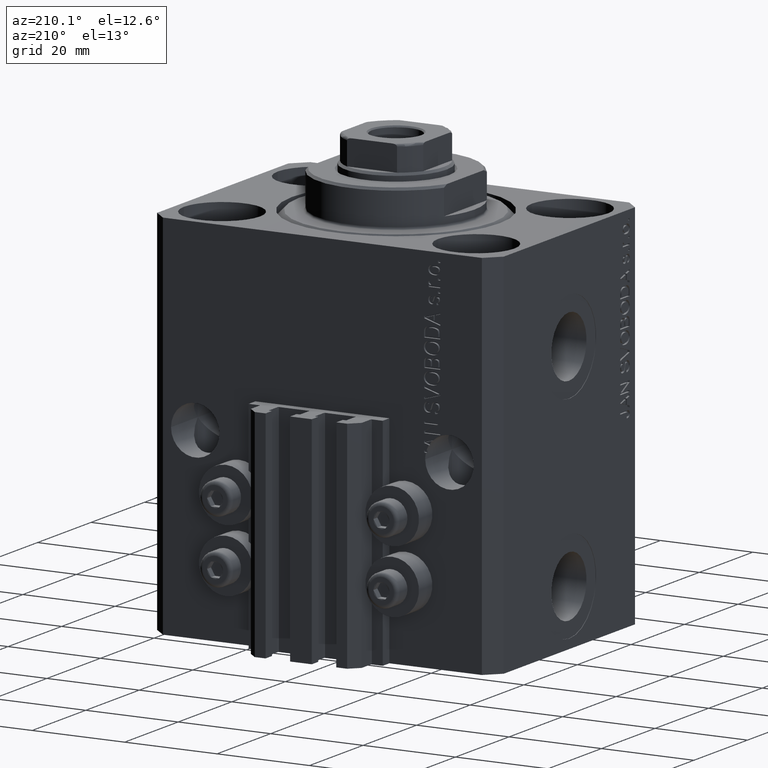
[diagram: clean part render]
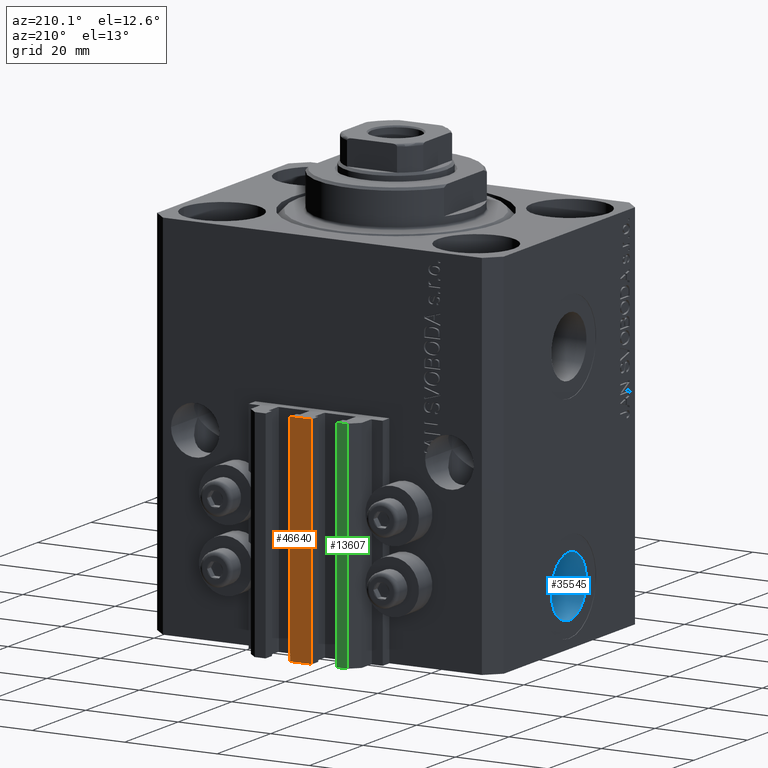
[diagram: same view with three faces highlighted in distinct colors, each labeled with its STEP entity id]
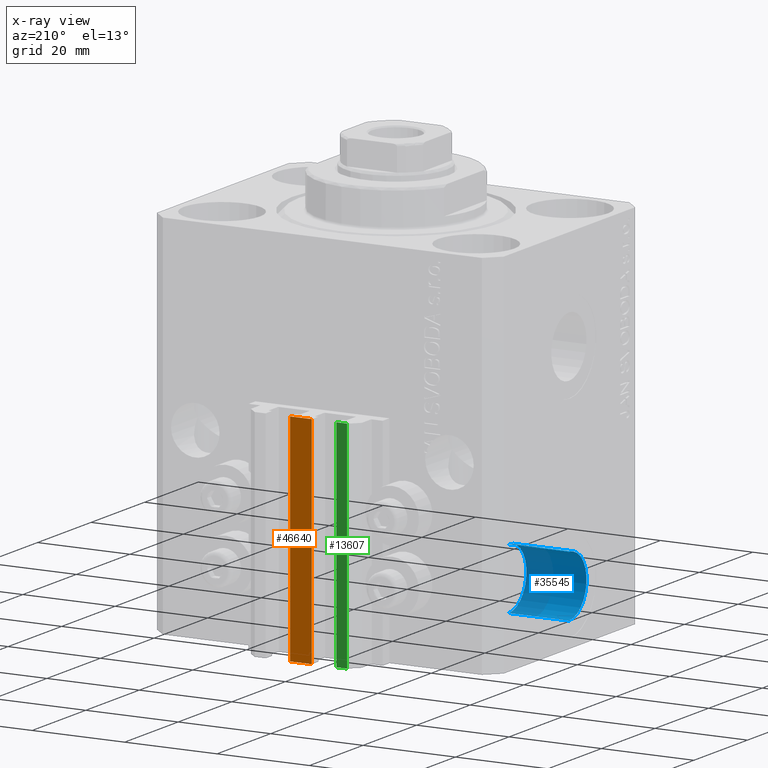
[diagram: x-ray of the same camera — body ghosted, the three highlighted faces saturated]
A machine part, auxiliary view with three faces highlighted in distinct colors.
The next image is the same camera in x-ray (body ghosted, the three faces saturated) — at least one of them is partly hidden behind the body in this view.
Their STEP definitions:

[orange] entity #46640 — the highlighted planar face has unit normal (0, -1, 0).
#726 = VECTOR ( 'NONE', #23670, 1000.000000000000000 ) ;
#1912 = ORIENTED_EDGE ( 'NONE', *, *, #36977, .T. ) ;
#2088 = EDGE_LOOP ( 'NONE', ( #1912, #20902, #24028, #38511 ) ) ;
#6210 = PLANE ( 'NONE',  #6509 ) ;
#6509 = AXIS2_PLACEMENT_3D ( 'NONE', #9569, #38075, #13635 ) ;
#8865 = CARTESIAN_POINT ( 'NONE',  ( 2.349999999999999645, 35.50000000000001421, -80.00000000000000000 ) ) ;
#9569 = CARTESIAN_POINT ( 'NONE',  ( -2.350000000000003642, 35.50000000000001421, -80.00000000000000000 ) ) ;
#11147 = VERTEX_POINT ( 'NONE', #42440 ) ;
#11370 = EDGE_CURVE ( 'NONE', #11147, #12272, #45658, .T. ) ;
#12272 = VERTEX_POINT ( 'NONE', #32750 ) ;
#12517 = CARTESIAN_POINT ( 'NONE',  ( -2.350000000000003642, 35.50000000000001421, -33.00000000000000000 ) ) ;
#13635 = DIRECTION ( 'NONE',  ( 0.000000000000000000, -0.000000000000000000, -1.000000000000000000 ) ) ;
#17000 = DIRECTION ( 'NONE',  ( 1.000000000000000000, 0.000000000000000000, 0.000000000000000000 ) ) ;
#17645 = VERTEX_POINT ( 'NONE', #42418 ) ;
#20593 = LINE ( 'NONE', #35208, #39411 ) ;
#20902 = ORIENTED_EDGE ( 'NONE', *, *, #40556, .F. ) ;
#23074 = LINE ( 'NONE', #12517, #26889 ) ;
#23670 = DIRECTION ( 'NONE',  ( 0.000000000000000000, 0.000000000000000000, 1.000000000000000000 ) ) ;
#23727 = FACE_OUTER_BOUND ( 'NONE', #2088, .T. ) ;
#24028 = ORIENTED_EDGE ( 'NONE', *, *, #46674, .F. ) ;
#26889 = VECTOR ( 'NONE', #27154, 1000.000000000000000 ) ;
#27038 = CARTESIAN_POINT ( 'NONE',  ( -2.350000000000003642, 35.50000000000001421, -80.00000000000000000 ) ) ;
#27154 = DIRECTION ( 'NONE',  ( 1.000000000000000000, 0.000000000000000000, 0.000000000000000000 ) ) ;
#30576 = VERTEX_POINT ( 'NONE', #8865 ) ;
#32638 = DIRECTION ( 'NONE',  ( 0.000000000000000000, 0.000000000000000000, 1.000000000000000000 ) ) ;
#32750 = CARTESIAN_POINT ( 'NONE',  ( -2.350000000000003642, 35.50000000000001421, -33.00000000000000000 ) ) ;
#35208 = CARTESIAN_POINT ( 'NONE',  ( -2.350000000000003642, 35.50000000000001421, -80.00000000000000000 ) ) ;
#36977 = EDGE_CURVE ( 'NONE', #12272, #17645, #23074, .T. ) ;
#38075 = DIRECTION ( 'NONE',  ( 0.000000000000000000, -1.000000000000000000, 0.000000000000000000 ) ) ;
#38511 = ORIENTED_EDGE ( 'NONE', *, *, #11370, .T. ) ;
#39411 = VECTOR ( 'NONE', #17000, 1000.000000000000000 ) ;
#40556 = EDGE_CURVE ( 'NONE', #30576, #17645, #47215, .T. ) ;
#42418 = CARTESIAN_POINT ( 'NONE',  ( 2.349999999999999645, 35.50000000000001421, -33.00000000000000000 ) ) ;
#42440 = CARTESIAN_POINT ( 'NONE',  ( -2.350000000000003642, 35.50000000000001421, -80.00000000000000000 ) ) ;
#45349 = VECTOR ( 'NONE', #32638, 1000.000000000000000 ) ;
#45658 = LINE ( 'NONE', #27038, #726 ) ;
#46640 = ADVANCED_FACE ( 'NONE', ( #23727 ), #6210, .F. ) ;
#46674 = EDGE_CURVE ( 'NONE', #11147, #30576, #20593, .T. ) ;
#46748 = CARTESIAN_POINT ( 'NONE',  ( 2.349999999999999645, 35.50000000000001421, -80.00000000000000000 ) ) ;
#47215 = LINE ( 'NONE', #46748, #45349 ) ;

[blue] entity #35545 — the highlighted cylindrical surface (edge-blend (fillet) strip) has radius 6.58 mm, axis along (-1, -0, -0).
#441 = DIRECTION ( 'NONE',  ( 0.000000000000000000, 0.000000000000000000, 1.000000000000000000 ) ) ;
#3717 = VERTEX_POINT ( 'NONE', #8236 ) ;
#4220 = VERTEX_POINT ( 'NONE', #10766 ) ;
#5660 = CARTESIAN_POINT ( 'NONE',  ( -37.39999999999999147, -7.521780640363043654E-15, -74.58000000000001251 ) ) ;
#6518 = EDGE_CURVE ( 'NONE', #19028, #12379, #26714, .T. ) ;
#6597 = EDGE_LOOP ( 'NONE', ( #44742, #46131, #27960, #40165 ) ) ;
#7075 = DIRECTION ( 'NONE',  ( 0.000000000000000000, 0.000000000000000000, 1.000000000000000000 ) ) ;
#8236 = CARTESIAN_POINT ( 'NONE',  ( -24.39999999999999147, -7.521780640363043654E-15, -74.58000000000001251 ) ) ;
#8743 = AXIS2_PLACEMENT_3D ( 'NONE', #45205, #41386, #441 ) ;
#8781 = CARTESIAN_POINT ( 'NONE',  ( -37.39999999999999147, -8.327598234202001119E-15, -61.42000000000000171 ) ) ;
#10766 = CARTESIAN_POINT ( 'NONE',  ( -24.39999999999999147, -8.327598234202001119E-15, -61.42000000000000171 ) ) ;
#12379 = VERTEX_POINT ( 'NONE', #8781 ) ;
#14500 = CARTESIAN_POINT ( 'NONE',  ( -24.39999999999999147, -8.327598234202001119E-15, -68.00000000000000000 ) ) ;
#15155 = EDGE_CURVE ( 'NONE', #3717, #19028, #23858, .T. ) ;
#19028 = VERTEX_POINT ( 'NONE', #5660 ) ;
#20259 = CARTESIAN_POINT ( 'NONE',  ( -24.39999999999999147, -7.521780640363043654E-15, -74.58000000000001251 ) ) ;
#23467 = DIRECTION ( 'NONE',  ( -1.000000000000000000, 0.000000000000000000, 0.000000000000000000 ) ) ;
#23858 = LINE ( 'NONE', #20259, #39849 ) ;
#25185 = EDGE_CURVE ( 'NONE', #3717, #4220, #32443, .T. ) ;
#26586 = DIRECTION ( 'NONE',  ( 0.000000000000000000, 0.000000000000000000, 1.000000000000000000 ) ) ;
#26714 = CIRCLE ( 'NONE', #34378, 6.580000000000002736 ) ;
#27069 = CARTESIAN_POINT ( 'NONE',  ( -37.39999999999999147, -8.327598234202001119E-15, -68.00000000000000000 ) ) ;
#27960 = ORIENTED_EDGE ( 'NONE', *, *, #6518, .T. ) ;
#28439 = CYLINDRICAL_SURFACE ( 'NONE', #45922, 6.580000000000002736 ) ;
#32443 = CIRCLE ( 'NONE', #8743, 6.580000000000002736 ) ;
#32490 = DIRECTION ( 'NONE',  ( -1.000000000000000000, -0.000000000000000000, -0.000000000000000000 ) ) ;
#33667 = EDGE_CURVE ( 'NONE', #4220, #12379, #36949, .T. ) ;
#34378 = AXIS2_PLACEMENT_3D ( 'NONE', #27069, #23467, #26586 ) ;
#35545 = ADVANCED_FACE ( 'NONE', ( #39892 ), #28439, .F. ) ;
#36949 = LINE ( 'NONE', #44364, #42934 ) ;
#39849 = VECTOR ( 'NONE', #42983, 1000.000000000000000 ) ;
#39892 = FACE_OUTER_BOUND ( 'NONE', #6597, .T. ) ;
#40071 = DIRECTION ( 'NONE',  ( -1.000000000000000000, -0.000000000000000000, -0.000000000000000000 ) ) ;
#40165 = ORIENTED_EDGE ( 'NONE', *, *, #33667, .F. ) ;
#41386 = DIRECTION ( 'NONE',  ( -1.000000000000000000, 0.000000000000000000, 0.000000000000000000 ) ) ;
#42934 = VECTOR ( 'NONE', #40071, 1000.000000000000000 ) ;
#42983 = DIRECTION ( 'NONE',  ( -1.000000000000000000, -0.000000000000000000, -0.000000000000000000 ) ) ;
#44364 = CARTESIAN_POINT ( 'NONE',  ( -24.39999999999999147, -8.327598234202001119E-15, -61.42000000000000171 ) ) ;
#44742 = ORIENTED_EDGE ( 'NONE', *, *, #25185, .F. ) ;
#45205 = CARTESIAN_POINT ( 'NONE',  ( -24.39999999999999147, -8.327598234202001119E-15, -68.00000000000000000 ) ) ;
#45922 = AXIS2_PLACEMENT_3D ( 'NONE', #14500, #32490, #7075 ) ;
#46131 = ORIENTED_EDGE ( 'NONE', *, *, #15155, .T. ) ;

[green] entity #13607 — the highlighted planar face has unit normal (0, 1, 0).
#762 = VECTOR ( 'NONE', #39132, 1000.000000000000000 ) ;
#1499 = CARTESIAN_POINT ( 'NONE',  ( -10.00000000000000000, 35.50000000000000000, -33.00000000000000000 ) ) ;
#2495 = ORIENTED_EDGE ( 'NONE', *, *, #30112, .F. ) ;
#3821 = DIRECTION ( 'NONE',  ( -1.000000000000000000, 0.000000000000000000, 0.000000000000000000 ) ) ;
#6913 = DIRECTION ( 'NONE',  ( -1.000000000000000000, 0.000000000000000000, 0.000000000000000000 ) ) ;
#10042 = LINE ( 'NONE', #24674, #30126 ) ;
#10643 = VERTEX_POINT ( 'NONE', #36780 ) ;
#10861 = LINE ( 'NONE', #32201, #762 ) ;
#11139 = FACE_OUTER_BOUND ( 'NONE', #40191, .T. ) ;
#13607 = ADVANCED_FACE ( 'NONE', ( #11139 ), #13784, .T. ) ;
#13784 = PLANE ( 'NONE',  #42892 ) ;
#15437 = DIRECTION ( 'NONE',  ( 0.000000000000000000, 0.000000000000000000, 1.000000000000000000 ) ) ;
#16895 = EDGE_CURVE ( 'NONE', #10643, #43992, #17969, .T. ) ;
#17969 = LINE ( 'NONE', #36630, #45276 ) ;
#19892 = DIRECTION ( 'NONE',  ( 0.000000000000000000, 0.000000000000000000, 1.000000000000000000 ) ) ;
#23466 = ORIENTED_EDGE ( 'NONE', *, *, #24170, .T. ) ;
#24170 = EDGE_CURVE ( 'NONE', #35879, #44717, #10042, .T. ) ;
#24674 = CARTESIAN_POINT ( 'NONE',  ( -7.650000000000000355, 35.50000000000000000, -80.00000000000000000 ) ) ;
#28423 = CARTESIAN_POINT ( 'NONE',  ( -7.650000000000000355, 35.50000000000000000, -80.00000000000000000 ) ) ;
#29173 = ORIENTED_EDGE ( 'NONE', *, *, #46499, .T. ) ;
#30112 = EDGE_CURVE ( 'NONE', #35879, #10643, #10861, .T. ) ;
#30126 = VECTOR ( 'NONE', #6913, 1000.000000000000000 ) ;
#30925 = LINE ( 'NONE', #38318, #40186 ) ;
#31609 = ORIENTED_EDGE ( 'NONE', *, *, #16895, .F. ) ;
#31963 = CARTESIAN_POINT ( 'NONE',  ( -7.650000000000000355, 35.50000000000000000, -80.00000000000000000 ) ) ;
#32201 = CARTESIAN_POINT ( 'NONE',  ( -7.650000000000000355, 35.50000000000000000, -80.00000000000000000 ) ) ;
#35879 = VERTEX_POINT ( 'NONE', #31963 ) ;
#36630 = CARTESIAN_POINT ( 'NONE',  ( -7.650000000000000355, 35.50000000000000000, -33.00000000000000000 ) ) ;
#36780 = CARTESIAN_POINT ( 'NONE',  ( -7.650000000000000355, 35.50000000000000000, -33.00000000000000000 ) ) ;
#38152 = CARTESIAN_POINT ( 'NONE',  ( -10.00000000000000000, 35.50000000000000000, -80.00000000000000000 ) ) ;
#38318 = CARTESIAN_POINT ( 'NONE',  ( -10.00000000000000000, 35.50000000000000000, -80.00000000000000000 ) ) ;
#39132 = DIRECTION ( 'NONE',  ( 0.000000000000000000, 0.000000000000000000, 1.000000000000000000 ) ) ;
#40186 = VECTOR ( 'NONE', #19892, 1000.000000000000000 ) ;
#40191 = EDGE_LOOP ( 'NONE', ( #31609, #2495, #23466, #29173 ) ) ;
#42892 = AXIS2_PLACEMENT_3D ( 'NONE', #28423, #43000, #15437 ) ;
#43000 = DIRECTION ( 'NONE',  ( 0.000000000000000000, 1.000000000000000000, -0.000000000000000000 ) ) ;
#43992 = VERTEX_POINT ( 'NONE', #1499 ) ;
#44717 = VERTEX_POINT ( 'NONE', #38152 ) ;
#45276 = VECTOR ( 'NONE', #3821, 1000.000000000000000 ) ;
#46499 = EDGE_CURVE ( 'NONE', #44717, #43992, #30925, .T. ) ;